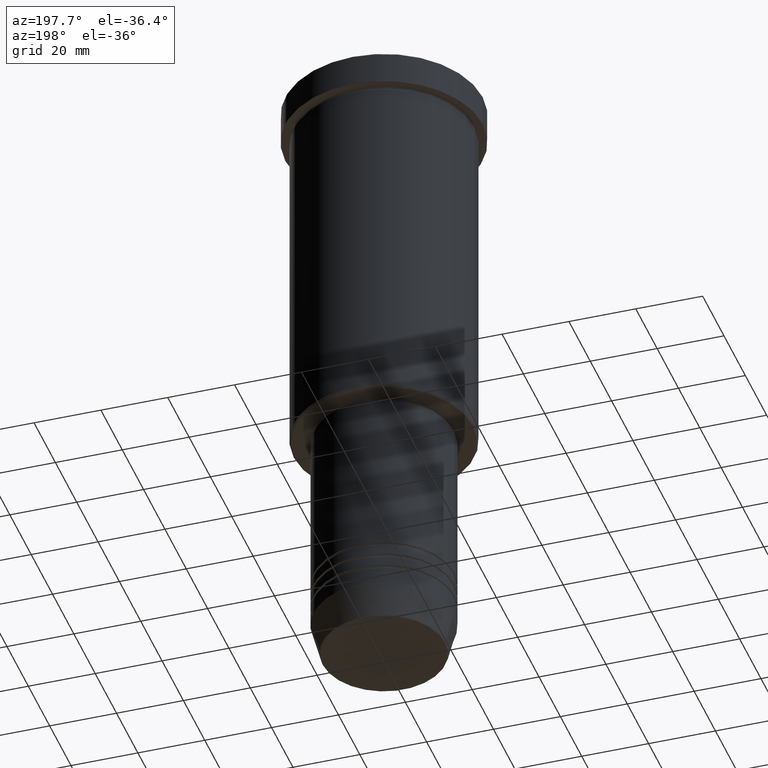
[diagram: clean part render]
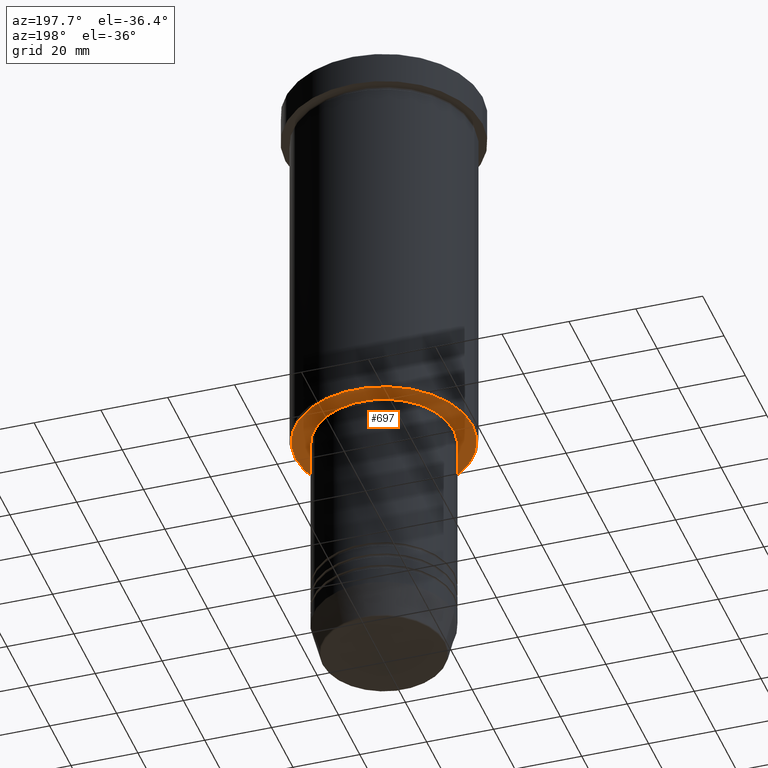
[diagram: same view with one face highlighted and labeled with its STEP entity id]
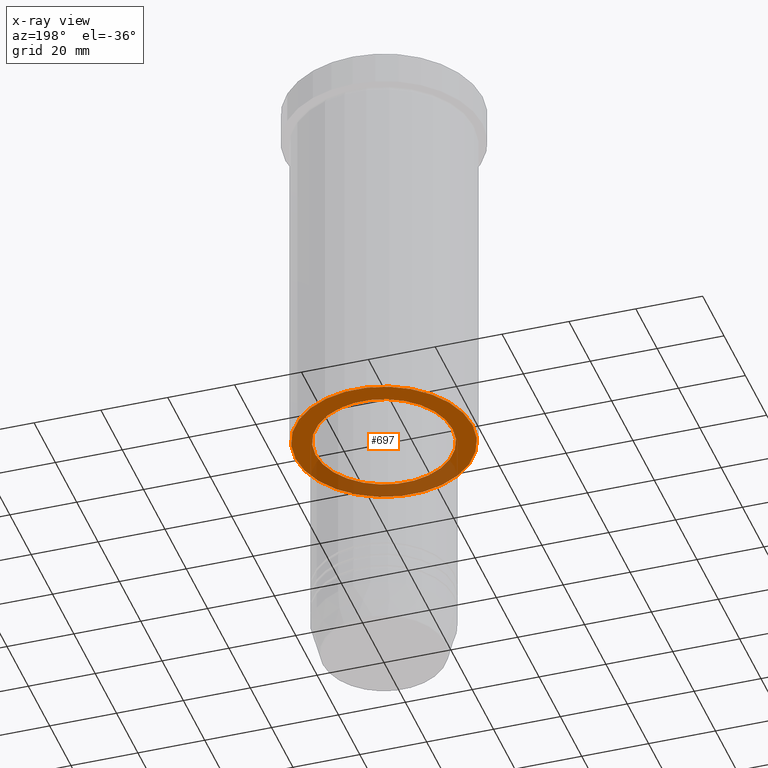
[diagram: x-ray of the same camera — body ghosted, the highlighted face saturated]
A machine part, auxiliary view. The second image highlights one B-rep face of the part: STEP entity #697.
The next image is the same camera in x-ray: the body ghosted, the highlighted face saturated — about 32% of this face is hidden behind the body in this view.
In plain terms, the highlighted planar face has unit normal (0, 0, -1).
Its self-contained STEP definition (entity closure, byte-faithful):
#9 = AXIS2_PLACEMENT_3D ( 'NONE', #82, #450, #1177 ) ;
#11 = CIRCLE ( 'NONE', #416, 26.49999999999992539 ) ;
#43 = CARTESIAN_POINT ( 'NONE',  ( 0.000000000000000000, 0.000000000000000000, -116.0000000000000142 ) ) ;
#47 = CIRCLE ( 'NONE', #904, 20.50000000000000000 ) ;
#82 = CARTESIAN_POINT ( 'NONE',  ( 0.000000000000000000, 0.000000000000000000, -116.0000000000000142 ) ) ;
#178 = DIRECTION ( 'NONE',  ( -1.000000000000000000, 0.000000000000000000, -0.000000000000000000 ) ) ;
#221 = EDGE_CURVE ( 'NONE', #331, #534, #1021, .T. ) ;
#229 = EDGE_LOOP ( 'NONE', ( #934, #1064 ) ) ;
#243 = DIRECTION ( 'NONE',  ( 1.000000000000000000, 0.000000000000000000, 0.000000000000000000 ) ) ;
#277 = VERTEX_POINT ( 'NONE', #920 ) ;
#295 = CIRCLE ( 'NONE', #9, 26.49999999999992539 ) ;
#317 = DIRECTION ( 'NONE',  ( -0.000000000000000000, -0.000000000000000000, 1.000000000000000000 ) ) ;
#331 = VERTEX_POINT ( 'NONE', #543 ) ;
#376 = DIRECTION ( 'NONE',  ( -1.000000000000000000, 0.000000000000000000, 0.000000000000000000 ) ) ;
#384 = FACE_OUTER_BOUND ( 'NONE', #229, .T. ) ;
#416 = AXIS2_PLACEMENT_3D ( 'NONE', #550, #989, #376 ) ;
#418 = ORIENTED_EDGE ( 'NONE', *, *, #221, .T. ) ;
#450 = DIRECTION ( 'NONE',  ( 0.000000000000000000, 0.000000000000000000, -1.000000000000000000 ) ) ;
#468 = DIRECTION ( 'NONE',  ( 0.000000000000000000, 0.000000000000000000, -1.000000000000000000 ) ) ;
#478 = FACE_BOUND ( 'NONE', #805, .T. ) ;
#534 = VERTEX_POINT ( 'NONE', #1146 ) ;
#543 = CARTESIAN_POINT ( 'NONE',  ( -20.50000000000000000, 2.510525938252074481E-15, -116.0000000000000142 ) ) ;
#550 = CARTESIAN_POINT ( 'NONE',  ( 0.000000000000000000, 0.000000000000000000, -116.0000000000000142 ) ) ;
#598 = AXIS2_PLACEMENT_3D ( 'NONE', #648, #468, #178 ) ;
#639 = PLANE ( 'NONE',  #598 ) ;
#648 = CARTESIAN_POINT ( 'NONE',  ( 0.000000000000000000, 27.00000000000000355, -116.0000000000000142 ) ) ;
#656 = EDGE_CURVE ( 'NONE', #916, #277, #295, .T. ) ;
#683 = DIRECTION ( 'NONE',  ( 1.000000000000000000, 0.000000000000000000, 0.000000000000000000 ) ) ;
#684 = AXIS2_PLACEMENT_3D ( 'NONE', #946, #317, #683 ) ;
#697 = ADVANCED_FACE ( 'NONE', ( #384, #478 ), #639, .T. ) ;
#798 = EDGE_CURVE ( 'NONE', #534, #331, #47, .T. ) ;
#805 = EDGE_LOOP ( 'NONE', ( #819, #418 ) ) ;
#819 = ORIENTED_EDGE ( 'NONE', *, *, #798, .T. ) ;
#904 = AXIS2_PLACEMENT_3D ( 'NONE', #43, #977, #243 ) ;
#916 = VERTEX_POINT ( 'NONE', #951 ) ;
#920 = CARTESIAN_POINT ( 'NONE',  ( 26.49999999999992539, 0.000000000000000000, -116.0000000000000142 ) ) ;
#934 = ORIENTED_EDGE ( 'NONE', *, *, #939, .T. ) ;
#939 = EDGE_CURVE ( 'NONE', #277, #916, #11, .T. ) ;
#946 = CARTESIAN_POINT ( 'NONE',  ( 0.000000000000000000, 0.000000000000000000, -116.0000000000000142 ) ) ;
#951 = CARTESIAN_POINT ( 'NONE',  ( -26.49999999999992539, 3.275930187719165608E-15, -116.0000000000000142 ) ) ;
#977 = DIRECTION ( 'NONE',  ( -0.000000000000000000, -0.000000000000000000, 1.000000000000000000 ) ) ;
#989 = DIRECTION ( 'NONE',  ( 0.000000000000000000, 0.000000000000000000, -1.000000000000000000 ) ) ;
#1021 = CIRCLE ( 'NONE', #684, 20.50000000000000000 ) ;
#1064 = ORIENTED_EDGE ( 'NONE', *, *, #656, .T. ) ;
#1146 = CARTESIAN_POINT ( 'NONE',  ( 20.50000000000000000, 0.000000000000000000, -116.0000000000000142 ) ) ;
#1177 = DIRECTION ( 'NONE',  ( -1.000000000000000000, 0.000000000000000000, 0.000000000000000000 ) ) ;